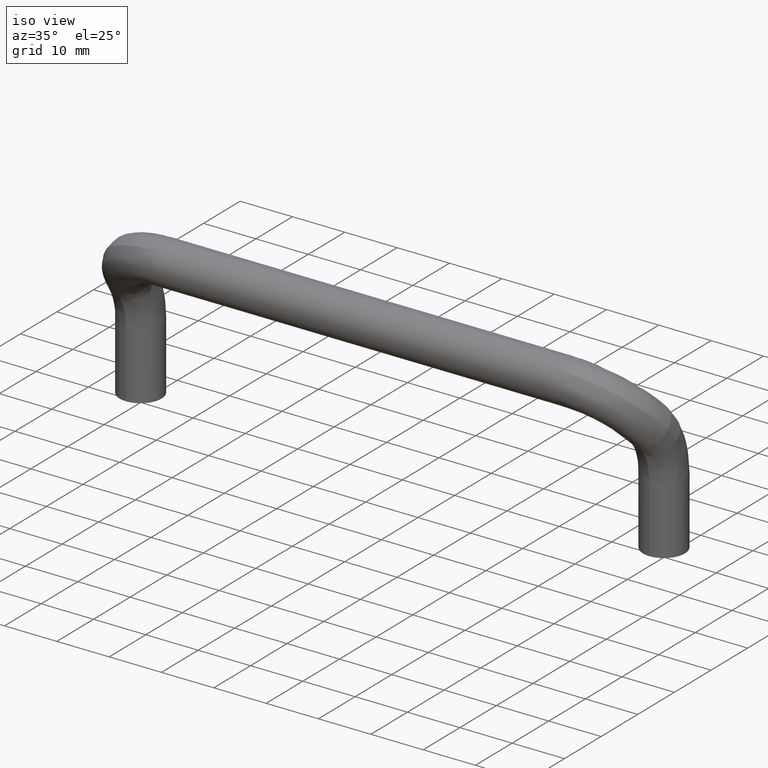
[diagram: clean part render]
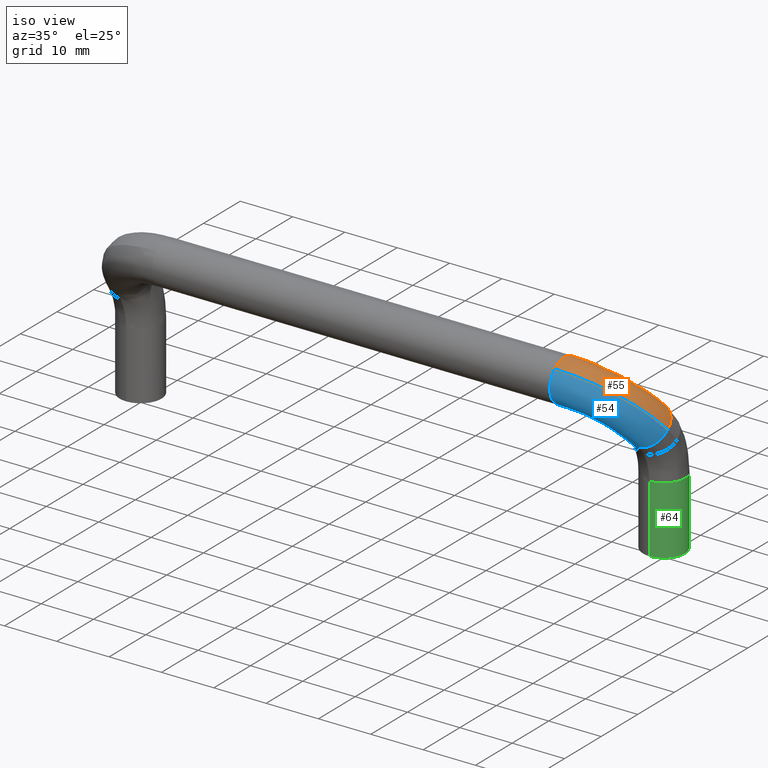
[diagram: same view with three faces highlighted in distinct colors, each labeled with its STEP entity id]
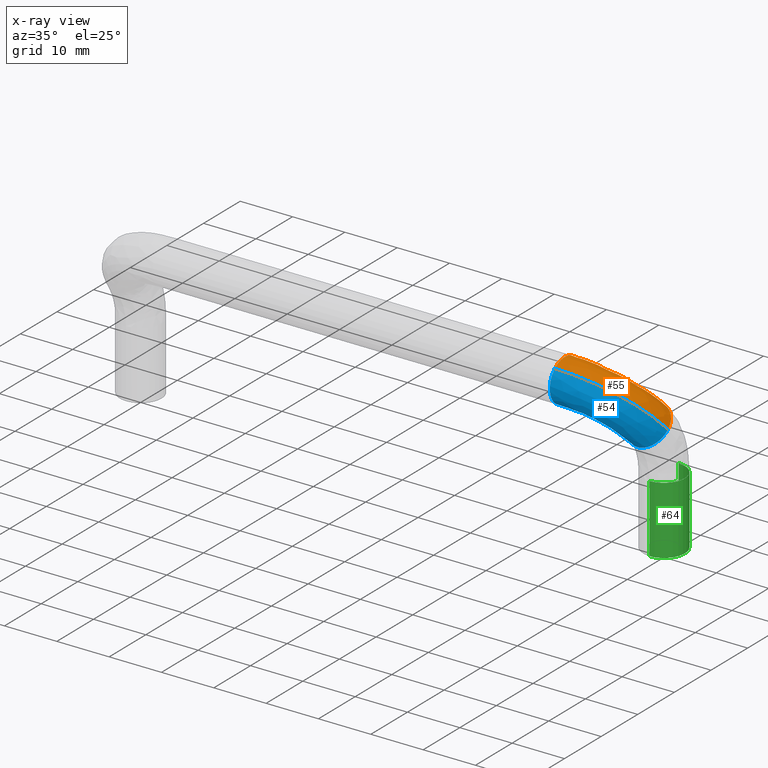
[diagram: x-ray of the same camera — body ghosted, the three highlighted faces saturated]
A machine part, iso view with three faces highlighted in distinct colors.
The next image is the same camera in x-ray (body ghosted, the three faces saturated) — at least one of them is partly hidden behind the body in this view.
Their STEP definitions:

[orange] entity #55 — the highlighted face is a freeform B-spline surface patch.
#55=ADVANCED_FACE('',(#223),#222,.T.);
#222=( BOUNDED_SURFACE() B_SPLINE_SURFACE( 2,2,((#686,#687,#688,#689,#690),(#691,#692,#693,#694,#695),(#696,#697,#698,#699,#700),(#701,#702,#703,#704,#705),(#706,#707,#708,#709,#710)), .UNSPECIFIED.,.F.,.F.,.F.) B_SPLINE_SURFACE_WITH_KNOTS((3,2,3),(3,2,3),(4.44089209850E-16,1.57079632679E+00,3.14159265359E+00),(1.78578232053E+00,3.14159265359E+00,3.14287536878E+00), .UNSPECIFIED. ) GEOMETRIC_REPRESENTATION_ITEM() RATIONAL_B_SPLINE_SURFACE(((9.30799590473E-01,7.47193416628E-01,1.00000000000E+00,9.99760822855E-01,9.99522036335E-01),(6.58174702349E-01,5.28345531755E-01,7.07106781187E-01,7.06937657405E-01,7.06768809838E-01),(9.30799590473E-01,7.47193416628E-01,1.00000000000E+00,9.99760822855E-01,9.99522036335E-01),(6.58174702349E-01,5.28345531755E-01,7.07106781187E-01,7.06937657405E-01,7.06768809838E-01),(9.30799590473E-01,7.47193416628E-01,1.00000000000E+00,9.99760822855E-01,9.99522036335E-01))) REPRESENTATION_ITEM('') SURFACE() );
#223=FACE_OUTER_BOUND('',#711,.T.);
#686=CARTESIAN_POINT('',(5.36780085214E+01,5.88349828058E+00,-2.55243925433E+00));
#687=CARTESIAN_POINT('',(5.10692603795E+01,-2.67241983801E+00,6.97626816826E+00));
#688=CARTESIAN_POINT('',(3.80000000001E+01,-2.67241983801E+00,6.97626816826E+00));
#689=CARTESIAN_POINT('',(3.79907589945E+01,-2.67241983801E+00,6.97626816826E+00));
#690=CARTESIAN_POINT('',(3.79815179951E+01,-2.67241270631E+00,6.97626022570E+00));
#691=CARTESIAN_POINT('',(5.36780085214E+01,8.85976644885E+00,1.19980583675E-01));
#692=CARTESIAN_POINT('',(5.10692603795E+01,3.03848330265E-01,9.64868800627E+00));
#693=CARTESIAN_POINT('',(3.80000000001E+01,3.03848330265E-01,9.64868800627E+00));
#694=CARTESIAN_POINT('',(3.79907589945E+01,3.03848330265E-01,9.64868800627E+00));
#695=CARTESIAN_POINT('',(3.79815179951E+01,3.03855461964E-01,9.64868006371E+00));
#696=CARTESIAN_POINT('',(4.97585063910E+01,9.39320675720E+00,-4.74110728932E-01));
#697=CARTESIAN_POINT('',(4.78019452846E+01,2.97626816827E+00,6.67241983800E+00));
#698=CARTESIAN_POINT('',(3.80000000001E+01,2.97626816827E+00,6.67241983800E+00));
#699=CARTESIAN_POINT('',(3.79930692459E+01,2.97626816827E+00,6.67241983800E+00));
#700=CARTESIAN_POINT('',(3.79861384964E+01,2.97627351704E+00,6.67241388108E+00));
#701=CARTESIAN_POINT('',(4.58390042607E+01,9.92664706554E+00,-1.06820204154E+00));
#702=CARTESIAN_POINT('',(4.45346301898E+01,5.64868800627E+00,3.69615166973E+00));
#703=CARTESIAN_POINT('',(3.80000000001E+01,5.64868800627E+00,3.69615166973E+00));
#704=CARTESIAN_POINT('',(3.79953794973E+01,5.64868800627E+00,3.69615166973E+00));
#705=CARTESIAN_POINT('',(3.79907589976E+01,5.64869157212E+00,3.69614769845E+00));
#706=CARTESIAN_POINT('',(4.58390042607E+01,6.95037889727E+00,-3.74062187954E+00));
#707=CARTESIAN_POINT('',(4.45346301898E+01,2.67241983800E+00,1.02373183172E+00));
#708=CARTESIAN_POINT('',(3.80000000001E+01,2.67241983800E+00,1.02373183172E+00));
#709=CARTESIAN_POINT('',(3.79953794973E+01,2.67241983800E+00,1.02373183172E+00));
#710=CARTESIAN_POINT('',(3.79907589976E+01,2.67242340385E+00,1.02372786044E+00));
#711=EDGE_LOOP('',(#926,#927,#928,#929,#930,#931));
#926=ORIENTED_EDGE('',*,*,#1020,.F.);
#927=ORIENTED_EDGE('',*,*,#1034,.F.);
#928=ORIENTED_EDGE('',*,*,#1044,.T.);
#929=ORIENTED_EDGE('',*,*,#1046,.T.);
#930=ORIENTED_EDGE('',*,*,#1047,.T.);
#931=ORIENTED_EDGE('',*,*,#1045,.F.);
#1020=EDGE_CURVE('',#1182,#1183,#1184,.T.);
#1034=EDGE_CURVE('',#1258,#1182,#1278,.T.);
#1044=EDGE_CURVE('',#1258,#1336,#1343,.T.);
#1045=EDGE_CURVE('',#1183,#1328,#1349,.T.);
#1046=EDGE_CURVE('',#1336,#1355,#1356,.T.);
#1047=EDGE_CURVE('',#1355,#1328,#1362,.T.);
#1182=VERTEX_POINT('',#1600);
#1183=VERTEX_POINT('',#1601);
#1184=CIRCLE('',#1605,4.00000000000E+00);
#1258=VERTEX_POINT('',#1654);
#1278=CIRCLE('',#1671,4.00000000000E+00);
#1328=VERTEX_POINT('',#1698);
#1336=VERTEX_POINT('',#1704);
#1343=(BOUNDED_CURVE() B_SPLINE_CURVE(2,(#1709,#1710,#1711),.UNSPECIFIED.,.F.,.F.) B_SPLINE_CURVE_WITH_KNOTS((3,3),(1.78578232513E+00,3.14159265359E+00),.UNSPECIFIED.) CURVE() GEOMETRIC_REPRESENTATION_ITEM() RATIONAL_B_SPLINE_CURVE((9.30799589226E-01,7.47193417487E-01,1.00000000000E+00)) REPRESENTATION_ITEM('') );
#1349=(BOUNDED_CURVE() B_SPLINE_CURVE(3,(#1712,#1713,#1714,#1715,#1716),.UNSPECIFIED.,.F.,.F.) B_SPLINE_CURVE_WITH_KNOTS((4,1,4),(1.78578232053E+00,2.47599791291E+00,3.14159265360E+00),.UNSPECIFIED.) CURVE() GEOMETRIC_REPRESENTATION_ITEM() RATIONAL_B_SPLINE_CURVE((1.00000000000E+00,1.00000000000E+00,1.00000000000E+00,1.00000000000E+00,1.00000000000E+00)) REPRESENTATION_ITEM('') );
#1355=VERTEX_POINT('',#1717);
#1356=CIRCLE('',#1721,4.00000000000E+00);
#1362=CIRCLE('',#1725,4.00000000000E+00);
#1600=CARTESIAN_POINT('',(4.97585063910E+01,9.39320675720E+00,-4.74110728916E-01));
#1601=CARTESIAN_POINT('',(5.36780085214E+01,5.88349828057E+00,-2.55243925429E+00));
#1602=CARTESIAN_POINT('',(4.97585063910E+01,6.41693858893E+00,-3.14653056692E+00));
#1603=DIRECTION('',(1.99609470330E-01,6.54659703013E-01,-7.29093089122E-01));
#1604=DIRECTION('',(1.38544752922E-13,-7.44067042067E-01,-6.68104959501E-01));
#1605=AXIS2_PLACEMENT_3D('',#1602,#1603,#1604);
#1654=CARTESIAN_POINT('',(4.58390042607E+01,6.95037889729E+00,-3.74062187955E+00));
#1668=CARTESIAN_POINT('',(4.97585063910E+01,6.41693858893E+00,-3.14653056692E+00));
#1669=DIRECTION('',(1.99609470330E-01,6.54659703013E-01,-7.29093089122E-01));
#1670=DIRECTION('',(9.79875532583E-01,-1.33360077090E-01,1.48522828158E-01));
#1671=AXIS2_PLACEMENT_3D('',#1668,#1669,#1670);
#1698=CARTESIAN_POINT('',(3.80000000001E+01,-2.67242067827E+00,6.97626741378E+00));
#1704=CARTESIAN_POINT('',(3.80000000001E+01,2.67241983800E+00,1.02373183173E+00));
#1709=CARTESIAN_POINT('',(4.58390042536E+01,6.95037887394E+00,-3.74062185356E+00));
#1710=CARTESIAN_POINT('',(4.45346301601E+01,2.67241983800E+00,1.02373183172E+00));
#1711=CARTESIAN_POINT('',(3.80000000001E+01,2.67241983800E+00,1.02373183172E+00));
#1712=CARTESIAN_POINT('',(5.36780085214E+01,5.88349828056E+00,-2.55243925431E+00));
#1713=CARTESIAN_POINT('',(5.29640557657E+01,3.46250237315E+00,1.43818628634E-01));
#1714=CARTESIAN_POINT('',(4.88677344677E+01,-9.72537382814E-01,5.08311277058E+00));
#1715=CARTESIAN_POINT('',(4.15657357345E+01,-2.68442001803E+00,6.98963274269E+00));
#1716=CARTESIAN_POINT('',(3.80000000000E+01,-2.67241983801E+00,6.97626816826E+00));
#1717=CARTESIAN_POINT('',(3.80000000001E+01,8.08745777671E-11,8.00000000000E+00));
#1718=CARTESIAN_POINT('',(3.80000000001E+01,8.06646416329E-14,4.00000000000E+00));
#1719=DIRECTION('',(1.00000000000E+00,0.00000000000E+00,0.00000000000E+00));
#1720=DIRECTION('',(0.00000000000E+00,-6.68105169568E-01,7.44066853446E-01));
#1721=AXIS2_PLACEMENT_3D('',#1718,#1719,#1720);
#1722=CARTESIAN_POINT('',(3.80000000001E+01,8.06646416329E-14,4.00000000000E+00));
#1723=DIRECTION('',(1.00000000000E+00,0.00000000000E+00,0.00000000000E+00));
#1724=DIRECTION('',(0.00000000000E+00,-6.68105169568E-01,7.44066853446E-01));
#1725=AXIS2_PLACEMENT_3D('',#1722,#1723,#1724);

[blue] entity #54 — the highlighted face is a freeform B-spline surface patch.
#54=ADVANCED_FACE('',(#213),#212,.T.);
#212=( BOUNDED_SURFACE() B_SPLINE_SURFACE( 2,2,((#660,#661,#662,#663,#664),(#665,#666,#667,#668,#669),(#670,#671,#672,#673,#674),(#675,#676,#677,#678,#679),(#680,#681,#682,#683,#684)), .UNSPECIFIED.,.F.,.F.,.F.) B_SPLINE_SURFACE_WITH_KNOTS((3,2,3),(3,2,3),(-3.14159265359E+00,-1.57079632679E+00,4.44089209850E-16),(1.78578232053E+00,3.14159265359E+00,3.14287536878E+00), .UNSPECIFIED. ) GEOMETRIC_REPRESENTATION_ITEM() RATIONAL_B_SPLINE_SURFACE(((9.30799590473E-01,7.47193416628E-01,1.00000000000E+00,9.99760822855E-01,9.99522036335E-01),(6.58174702349E-01,5.28345531755E-01,7.07106781187E-01,7.06937657405E-01,7.06768809838E-01),(9.30799590473E-01,7.47193416628E-01,1.00000000000E+00,9.99760822855E-01,9.99522036335E-01),(6.58174702349E-01,5.28345531755E-01,7.07106781187E-01,7.06937657405E-01,7.06768809838E-01),(9.30799590473E-01,7.47193416628E-01,1.00000000000E+00,9.99760822855E-01,9.99522036335E-01))) REPRESENTATION_ITEM('') SURFACE() );
#213=FACE_OUTER_BOUND('',#685,.T.);
#660=CARTESIAN_POINT('',(4.58390042607E+01,6.95037889728E+00,-3.74062187955E+00));
#661=CARTESIAN_POINT('',(4.45346301898E+01,2.67241983800E+00,1.02373183172E+00));
#662=CARTESIAN_POINT('',(3.80000000001E+01,2.67241983800E+00,1.02373183172E+00));
#663=CARTESIAN_POINT('',(3.79953794973E+01,2.67241983800E+00,1.02373183172E+00));
#664=CARTESIAN_POINT('',(3.79907589976E+01,2.67242340385E+00,1.02372786044E+00));
#665=CARTESIAN_POINT('',(4.58390042607E+01,3.97411072901E+00,-6.41304171756E+00));
#666=CARTESIAN_POINT('',(4.45346301898E+01,-3.03848330266E-01,-1.64868800628E+00));
#667=CARTESIAN_POINT('',(3.80000000001E+01,-3.03848330266E-01,-1.64868800628E+00));
#668=CARTESIAN_POINT('',(3.79953794973E+01,-3.03848330266E-01,-1.64868800628E+00));
#669=CARTESIAN_POINT('',(3.79907589976E+01,-3.03844764416E-01,-1.64869197756E+00));
#670=CARTESIAN_POINT('',(4.97585063910E+01,3.44067042066E+00,-5.81895040495E+00));
#671=CARTESIAN_POINT('',(4.78019452846E+01,-2.97626816827E+00,1.32758016199E+00));
#672=CARTESIAN_POINT('',(3.80000000001E+01,-2.97626816827E+00,1.32758016199E+00));
#673=CARTESIAN_POINT('',(3.79930692459E+01,-2.97626816827E+00,1.32758016199E+00));
#674=CARTESIAN_POINT('',(3.79861384964E+01,-2.97626281950E+00,1.32757420507E+00));
#675=CARTESIAN_POINT('',(5.36780085214E+01,2.90723011232E+00,-5.22485909235E+00));
#676=CARTESIAN_POINT('',(5.10692603795E+01,-5.64868800628E+00,4.30384833026E+00));
#677=CARTESIAN_POINT('',(3.80000000001E+01,-5.64868800628E+00,4.30384833026E+00));
#678=CARTESIAN_POINT('',(3.79907589945E+01,-5.64868800628E+00,4.30384833026E+00));
#679=CARTESIAN_POINT('',(3.79815179951E+01,-5.64868087458E+00,4.30384038770E+00));
#680=CARTESIAN_POINT('',(5.36780085214E+01,5.88349828059E+00,-2.55243925434E+00));
#681=CARTESIAN_POINT('',(5.10692603795E+01,-2.67241983801E+00,6.97626816826E+00));
#682=CARTESIAN_POINT('',(3.80000000001E+01,-2.67241983801E+00,6.97626816826E+00));
#683=CARTESIAN_POINT('',(3.79907589945E+01,-2.67241983801E+00,6.97626816826E+00));
#684=CARTESIAN_POINT('',(3.79815179951E+01,-2.67241270631E+00,6.97626022570E+00));
#685=EDGE_LOOP('',(#920,#921,#922,#923,#924,#925));
#920=ORIENTED_EDGE('',*,*,#1042,.T.);
#921=ORIENTED_EDGE('',*,*,#1043,.T.);
#922=ORIENTED_EDGE('',*,*,#1044,.F.);
#923=ORIENTED_EDGE('',*,*,#1031,.F.);
#924=ORIENTED_EDGE('',*,*,#1028,.F.);
#925=ORIENTED_EDGE('',*,*,#1045,.T.);
#1028=EDGE_CURVE('',#1183,#1238,#1239,.T.);
#1031=EDGE_CURVE('',#1238,#1258,#1259,.T.);
#1042=EDGE_CURVE('',#1328,#1329,#1330,.T.);
#1043=EDGE_CURVE('',#1329,#1336,#1337,.T.);
#1044=EDGE_CURVE('',#1258,#1336,#1343,.T.);
#1045=EDGE_CURVE('',#1183,#1328,#1349,.T.);
#1183=VERTEX_POINT('',#1601);
#1238=VERTEX_POINT('',#1640);
#1239=CIRCLE('',#1644,4.00000000000E+00);
#1258=VERTEX_POINT('',#1654);
#1259=CIRCLE('',#1658,4.00000000000E+00);
#1328=VERTEX_POINT('',#1698);
#1329=VERTEX_POINT('',#1699);
#1330=CIRCLE('',#1703,4.00000000000E+00);
#1336=VERTEX_POINT('',#1704);
#1337=CIRCLE('',#1708,4.00000000000E+00);
#1343=(BOUNDED_CURVE() B_SPLINE_CURVE(2,(#1709,#1710,#1711),.UNSPECIFIED.,.F.,.F.) B_SPLINE_CURVE_WITH_KNOTS((3,3),(1.78578232513E+00,3.14159265359E+00),.UNSPECIFIED.) CURVE() GEOMETRIC_REPRESENTATION_ITEM() RATIONAL_B_SPLINE_CURVE((9.30799589226E-01,7.47193417487E-01,1.00000000000E+00)) REPRESENTATION_ITEM('') );
#1349=(BOUNDED_CURVE() B_SPLINE_CURVE(3,(#1712,#1713,#1714,#1715,#1716),.UNSPECIFIED.,.F.,.F.) B_SPLINE_CURVE_WITH_KNOTS((4,1,4),(1.78578232053E+00,2.47599791291E+00,3.14159265360E+00),.UNSPECIFIED.) CURVE() GEOMETRIC_REPRESENTATION_ITEM() RATIONAL_B_SPLINE_CURVE((1.00000000000E+00,1.00000000000E+00,1.00000000000E+00,1.00000000000E+00,1.00000000000E+00)) REPRESENTATION_ITEM('') );
#1601=CARTESIAN_POINT('',(5.36780085214E+01,5.88349828057E+00,-2.55243925429E+00));
#1640=CARTESIAN_POINT('',(4.97585063910E+01,3.44067042066E+00,-5.81895040492E+00));
#1641=CARTESIAN_POINT('',(4.97585063910E+01,6.41693858893E+00,-3.14653056692E+00));
#1642=DIRECTION('',(1.99609470330E-01,6.54659703013E-01,-7.29093089122E-01));
#1643=DIRECTION('',(-9.79875532583E-01,1.33360077090E-01,-1.48522828158E-01));
#1644=AXIS2_PLACEMENT_3D('',#1641,#1642,#1643);
#1654=CARTESIAN_POINT('',(4.58390042607E+01,6.95037889729E+00,-3.74062187955E+00));
#1655=CARTESIAN_POINT('',(4.97585063910E+01,6.41693858893E+00,-3.14653056692E+00));
#1656=DIRECTION('',(1.99609470330E-01,6.54659703013E-01,-7.29093089122E-01));
#1657=DIRECTION('',(-4.17421696156E-13,7.44067042066E-01,6.68104959502E-01));
#1658=AXIS2_PLACEMENT_3D('',#1655,#1656,#1657);
#1698=CARTESIAN_POINT('',(3.80000000001E+01,-2.67242067827E+00,6.97626741378E+00));
#1699=CARTESIAN_POINT('',(3.80000000001E+01,-3.83046434336E-05,1.83405412072E-10));
#1700=CARTESIAN_POINT('',(3.80000000001E+01,8.06646416329E-14,4.00000000000E+00));
#1701=DIRECTION('',(1.00000000000E+00,0.00000000000E+00,0.00000000000E+00));
#1702=DIRECTION('',(0.00000000000E+00,-6.68105169568E-01,7.44066853446E-01));
#1703=AXIS2_PLACEMENT_3D('',#1700,#1701,#1702);
#1704=CARTESIAN_POINT('',(3.80000000001E+01,2.67241983800E+00,1.02373183173E+00));
#1705=CARTESIAN_POINT('',(3.80000000001E+01,8.06646416329E-14,4.00000000000E+00));
#1706=DIRECTION('',(1.00000000000E+00,0.00000000000E+00,0.00000000000E+00));
#1707=DIRECTION('',(0.00000000000E+00,-6.68105169568E-01,7.44066853446E-01));
#1708=AXIS2_PLACEMENT_3D('',#1705,#1706,#1707);
#1709=CARTESIAN_POINT('',(4.58390042536E+01,6.95037887394E+00,-3.74062185356E+00));
#1710=CARTESIAN_POINT('',(4.45346301601E+01,2.67241983800E+00,1.02373183172E+00));
#1711=CARTESIAN_POINT('',(3.80000000001E+01,2.67241983800E+00,1.02373183172E+00));
#1712=CARTESIAN_POINT('',(5.36780085214E+01,5.88349828056E+00,-2.55243925431E+00));
#1713=CARTESIAN_POINT('',(5.29640557657E+01,3.46250237315E+00,1.43818628634E-01));
#1714=CARTESIAN_POINT('',(4.88677344677E+01,-9.72537382814E-01,5.08311277058E+00));
#1715=CARTESIAN_POINT('',(4.15657357345E+01,-2.68442001803E+00,6.98963274269E+00));
#1716=CARTESIAN_POINT('',(3.80000000000E+01,-2.67241983801E+00,6.97626816826E+00));

[green] entity #64 — the highlighted cylindrical surface (edge-blend (fillet) strip) has radius 4 mm, axis along (0, -0, -1).
#64=ADVANCED_FACE('',(#313),#312,.T.);
#312=CYLINDRICAL_SURFACE('',#841,4.00000000000E+00);
#313=FACE_OUTER_BOUND('',#842,.T.);
#838=CARTESIAN_POINT('',(5.00000000001E+01,9.99999999999E+00,-1.90000000000E+01));
#839=DIRECTION('',(0.00000000000E+00,-3.23592648403E-13,-1.00000000000E+00));
#840=DIRECTION('',(0.00000000000E+00,1.00000000000E+00,-3.23592648403E-13));
#841=AXIS2_PLACEMENT_3D('',#838,#839,#840);
#842=EDGE_LOOP('',(#978,#979,#980,#981));
#978=ORIENTED_EDGE('',*,*,#1025,.F.);
#979=ORIENTED_EDGE('',*,*,#1066,.F.);
#980=ORIENTED_EDGE('',*,*,#1063,.T.);
#981=ORIENTED_EDGE('',*,*,#1067,.T.);
#1025=EDGE_CURVE('',#1211,#1210,#1218,.T.);
#1063=EDGE_CURVE('',#1442,#1449,#1468,.T.);
#1066=EDGE_CURVE('',#1442,#1211,#1486,.T.);
#1067=EDGE_CURVE('',#1449,#1210,#1492,.T.);
#1210=VERTEX_POINT('',#1620);
#1211=VERTEX_POINT('',#1621);
#1218=CIRCLE('',#1629,4.00000000000E+00);
#1442=VERTEX_POINT('',#1776);
#1449=VERTEX_POINT('',#1781);
#1468=CIRCLE('',#1795,4.00000000000E+00);
#1486=(BOUNDED_CURVE() B_SPLINE_CURVE(1,(#1800,#1801),.UNSPECIFIED.,.F.,.F.) B_SPLINE_CURVE_WITH_KNOTS((2,2),(8.33333343261E-02,9.16666667006E-01),.UNSPECIFIED.) CURVE() GEOMETRIC_REPRESENTATION_ITEM() RATIONAL_B_SPLINE_CURVE((1.00000000000E+00,1.00000000000E+00)) REPRESENTATION_ITEM('') );
#1492=(BOUNDED_CURVE() B_SPLINE_CURVE(1,(#1802,#1803),.UNSPECIFIED.,.F.,.F.) B_SPLINE_CURVE_WITH_KNOTS((2,2),(8.33333333335E-02,9.16666666666E-01),.UNSPECIFIED.) CURVE() GEOMETRIC_REPRESENTATION_ITEM() RATIONAL_B_SPLINE_CURVE((7.50000000000E-01,7.50000000000E-01)) REPRESENTATION_ITEM('') );
#1620=CARTESIAN_POINT('',(5.00000000001E+01,5.99999999999E+00,-2.54999999999E+01));
#1621=CARTESIAN_POINT('',(5.00000000001E+01,1.40000000000E+01,-2.54999999999E+01));
#1626=CARTESIAN_POINT('',(5.00000000001E+01,9.99999999999E+00,-2.54999999999E+01));
#1627=DIRECTION('',(2.24207754292E-44,5.89750470679E-13,-1.00000000000E+00));
#1628=DIRECTION('',(-0.00000000000E+00,-1.00000000000E+00,-5.89750470679E-13));
#1629=AXIS2_PLACEMENT_3D('',#1626,#1627,#1628);
#1776=CARTESIAN_POINT('',(4.99999999995E+01,1.40000000000E+01,-1.24999999999E+01));
#1781=CARTESIAN_POINT('',(5.00000000001E+01,6.00000000000E+00,-1.24999999999E+01));
#1792=CARTESIAN_POINT('',(5.00000000001E+01,1.00000000000E+01,-1.24999999999E+01));
#1793=DIRECTION('',(3.23525924785E-13,-3.35757632988E-17,-1.00000000000E+00));
#1794=DIRECTION('',(-1.00000000000E+00,6.75864529273E-16,-3.23525924785E-13));
#1795=AXIS2_PLACEMENT_3D('',#1792,#1793,#1794);
#1800=CARTESIAN_POINT('',(5.00000000001E+01,1.40000000000E+01,-1.25000000154E+01));
#1801=CARTESIAN_POINT('',(5.00000000001E+01,1.40000000000E+01,-2.55000000052E+01));
#1802=CARTESIAN_POINT('',(5.00000000001E+01,5.99999999999E+00,-1.24999999999E+01));
#1803=CARTESIAN_POINT('',(5.00000000001E+01,5.99999999999E+00,-2.54999999999E+01));